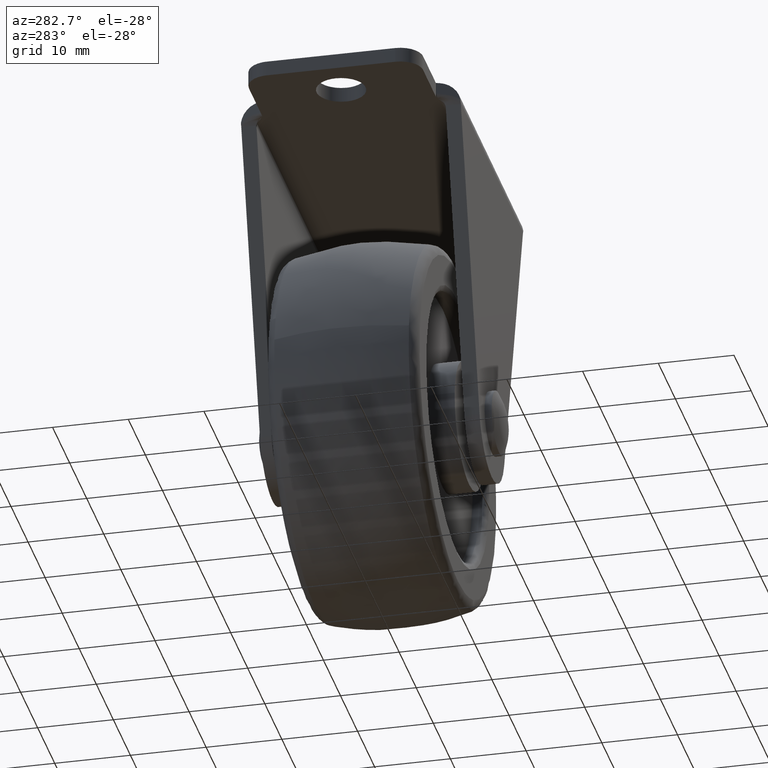
[diagram: clean part render]
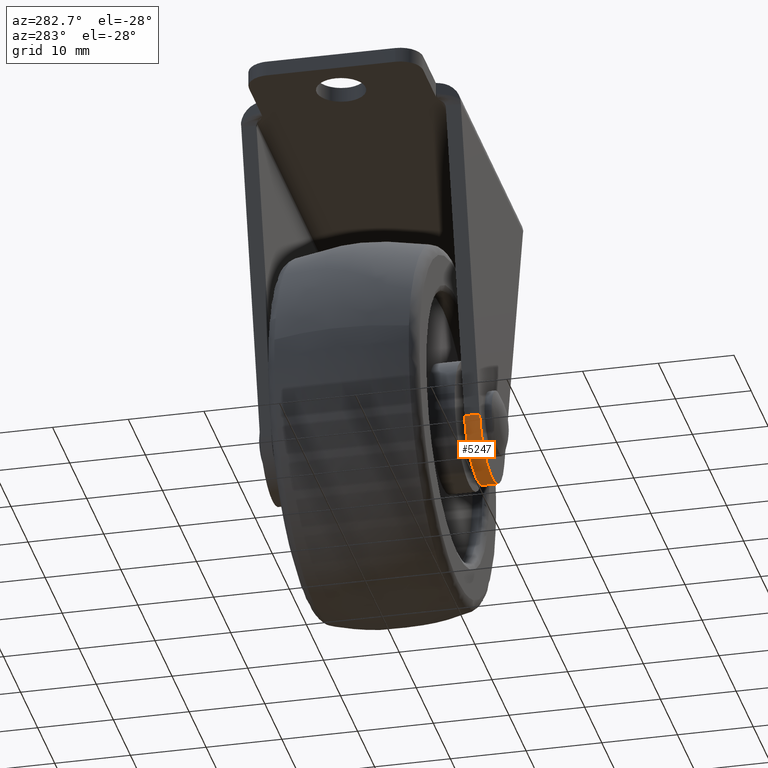
[diagram: same view with one face highlighted and labeled with its STEP entity id]
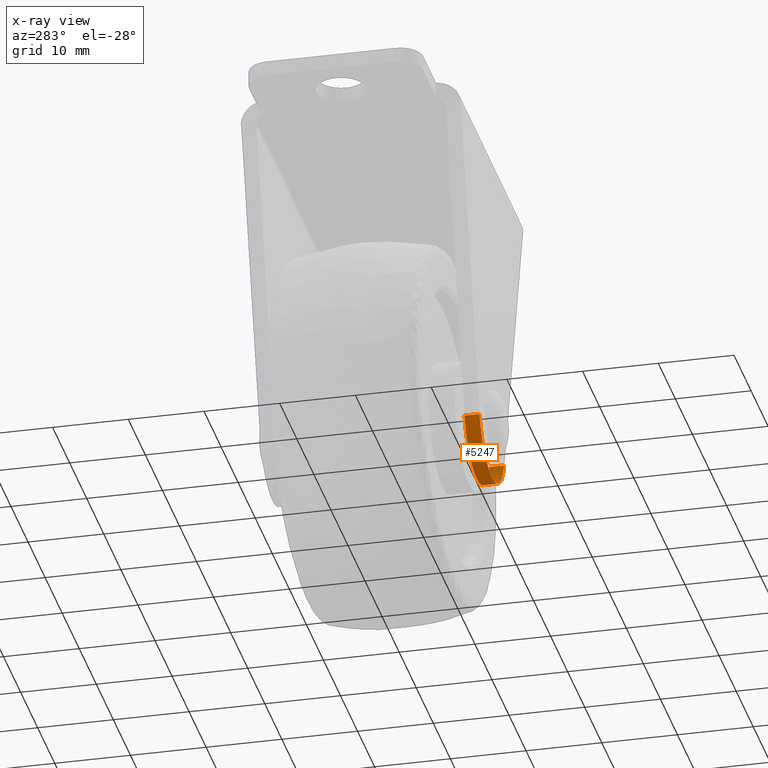
[diagram: x-ray of the same camera — body ghosted, the highlighted face saturated]
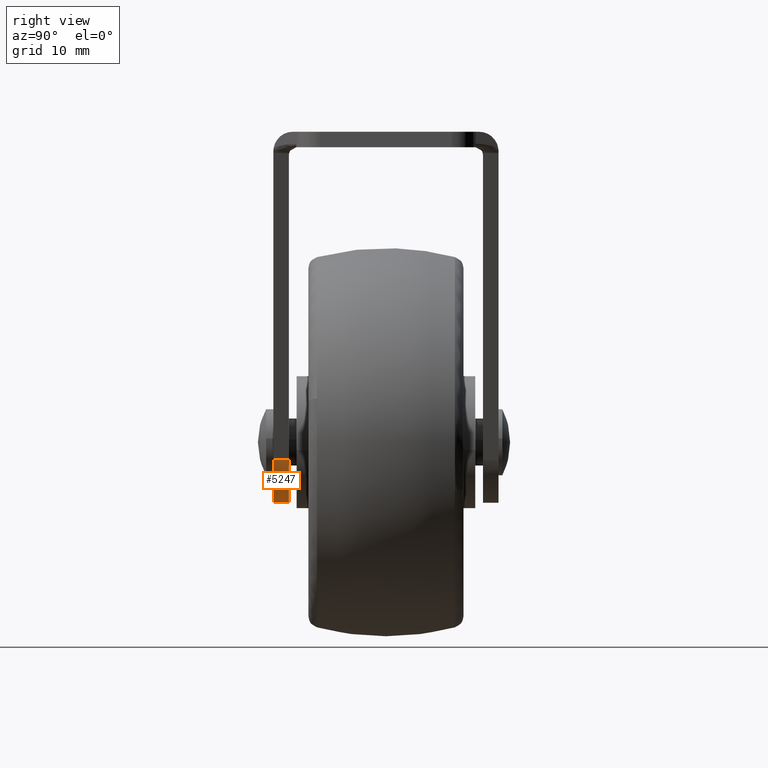
[diagram: same view with one face highlighted and labeled with its STEP entity id]
A machine part, auxiliary view. The second image highlights one B-rep face of the part: STEP entity #5247.
The next image is the same camera in x-ray: the body ghosted, the highlighted face saturated — about 0% of this face is hidden behind the body in this view.
A second angle (right view) of the same face is appended — the face is thin or edge-on in the first view.
In plain terms, the highlighted face is a freeform B-spline surface patch.
Its self-contained STEP definition (entity closure, byte-faithful):
#5144=CARTESIAN_POINT('',(7.227166871882170,-14.500000000000000,-42.304376253445547));
#5145=VERTEX_POINT('',#5144);
#5151=CARTESIAN_POINT('',(7.227166871882170,-12.500000000000000,-42.304376253445547));
#5152=VERTEX_POINT('',#5151);
#5153=CARTESIAN_POINT('',(7.227166871882170,-14.500000000000000,-42.304376253445547));
#5154=CARTESIAN_POINT('',(7.227166871882170,-12.500000000000000,-42.304376253445547));
#5155=QUASI_UNIFORM_CURVE('',1,(#5153,#5154),.UNSPECIFIED.,.F.,.U.);
#5156=EDGE_CURVE('',#5145,#5152,#5155,.T.);
#5171=CARTESIAN_POINT('',(-7.227165871882169,-14.500000000000000,-42.304376253445547));
#5172=VERTEX_POINT('',#5171);
#5180=CARTESIAN_POINT('',(-7.227165871882169,-12.500000000000000,-42.304376253445547));
#5181=VERTEX_POINT('',#5180);
#5187=CARTESIAN_POINT('',(-7.227165871882169,-14.500000000000000,-42.304376253445547));
#5188=CARTESIAN_POINT('',(-7.227165871882169,-12.500000000000000,-42.304376253445547));
#5189=QUASI_UNIFORM_CURVE('',1,(#5187,#5188),.UNSPECIFIED.,.F.,.U.);
#5190=EDGE_CURVE('',#5172,#5181,#5189,.T.);
#5195=CARTESIAN_POINT('',(-7.277273591570820,-14.550000000000001,-42.114053802361873));
#5196=CARTESIAN_POINT('',(-7.277273591570820,-12.448750000000000,-42.114053802361873));
#5197=CARTESIAN_POINT('',(-5.821232966964906,-14.549999999999999,-47.954683749718590));
#5198=CARTESIAN_POINT('',(-5.821232966964906,-12.448749999999999,-47.954683749718590));
#5199=CARTESIAN_POINT('',(0.196095600372462,-14.550000000000001,-47.797300792672623));
#5200=CARTESIAN_POINT('',(0.196095600372462,-12.448750000000000,-47.797300792672623));
#5201=CARTESIAN_POINT('',(6.213424167709824,-14.549999999999999,-47.639917835626662));
#5202=CARTESIAN_POINT('',(6.213424167709824,-12.448749999999999,-47.639917835626662));
#5203=CARTESIAN_POINT('',(7.362160087210345,-14.550000000000001,-41.731160075343027));
#5204=CARTESIAN_POINT('',(7.362160087210345,-12.448750000000000,-41.731160075343027));
#5212=(BOUNDED_SURFACE()B_SPLINE_SURFACE(1,2,((#5195,#5197,#5199,#5201,#5203),(#5196,#5198,#5200,#5202,#5204)),.UNSPECIFIED.,.F.,.F.,.U.)B_SPLINE_SURFACE_WITH_KNOTS((2,2),(3,2,3),(0.0,2.101250000000004),(0.0,10.549956665104460,21.099913330208910),.UNSPECIFIED.)GEOMETRIC_REPRESENTATION_ITEM()RATIONAL_B_SPLINE_SURFACE(((1.0,0.779884483092882,1.0,0.779884483092882,1.0),(1.0,0.779884483092882,1.0,0.779884483092882,1.0)))REPRESENTATION_ITEM('')SURFACE());
#5213=CARTESIAN_POINT('',(7.227166871882161,-14.500000000000000,-42.304376253445547));
#5214=CARTESIAN_POINT('',(5.702949879410617,-14.500000000000000,-47.799864783501903));
#5215=CARTESIAN_POINT('',(0.000000499999999,-14.500000000000000,-47.799864783501903));
#5216=CARTESIAN_POINT('',(-5.702948879410617,-14.500000000000000,-47.799864783501903));
#5217=CARTESIAN_POINT('',(-7.227165871882161,-14.500000000000000,-42.304376253445547));
#5225=(BOUNDED_CURVE()B_SPLINE_CURVE(2,(#5213,#5214,#5215,#5216,#5217),.UNSPECIFIED.,.F.,.U.)B_SPLINE_CURVE_WITH_KNOTS((3,2,3),(0.0,0.500000000000000,1.0),.UNSPECIFIED.)CURVE()GEOMETRIC_REPRESENTATION_ITEM()RATIONAL_B_SPLINE_CURVE((1.0,0.796011368006917,1.0,0.796011368006917,1.0))REPRESENTATION_ITEM(''));
#5226=EDGE_CURVE('',#5145,#5172,#5225,.T.);
#5227=ORIENTED_EDGE('',*,*,#5226,.T.);
#5228=ORIENTED_EDGE('',*,*,#5190,.T.);
#5229=CARTESIAN_POINT('',(-7.227165871882162,-12.500000000000000,-42.304376253445547));
#5230=CARTESIAN_POINT('',(-5.702948879410618,-12.500000000000000,-47.799864783501917));
#5231=CARTESIAN_POINT('',(0.000000499999999,-12.500000000000000,-47.799864783501903));
#5232=CARTESIAN_POINT('',(5.702949879410616,-12.500000000000000,-47.799864783501917));
#5233=CARTESIAN_POINT('',(7.227166871882160,-12.500000000000000,-42.304376253445547));
#5241=(BOUNDED_CURVE()B_SPLINE_CURVE(2,(#5229,#5230,#5231,#5232,#5233),.UNSPECIFIED.,.F.,.U.)B_SPLINE_CURVE_WITH_KNOTS((3,2,3),(0.0,0.500000000000000,1.0),.UNSPECIFIED.)CURVE()GEOMETRIC_REPRESENTATION_ITEM()RATIONAL_B_SPLINE_CURVE((1.0,0.796011368006917,1.0,0.796011368006917,1.0))REPRESENTATION_ITEM(''));
#5242=EDGE_CURVE('',#5181,#5152,#5241,.T.);
#5243=ORIENTED_EDGE('',*,*,#5242,.T.);
#5244=ORIENTED_EDGE('',*,*,#5156,.F.);
#5245=EDGE_LOOP('',(#5227,#5228,#5243,#5244));
#5246=FACE_OUTER_BOUND('',#5245,.T.);
#5247=ADVANCED_FACE('',(#5246),#5212,.T.);